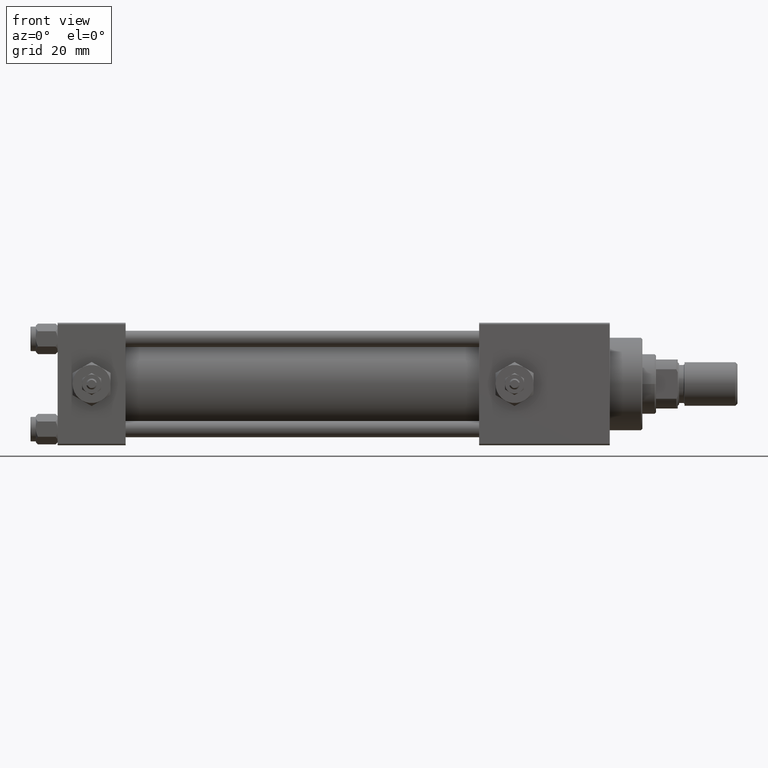
[diagram: clean part render]
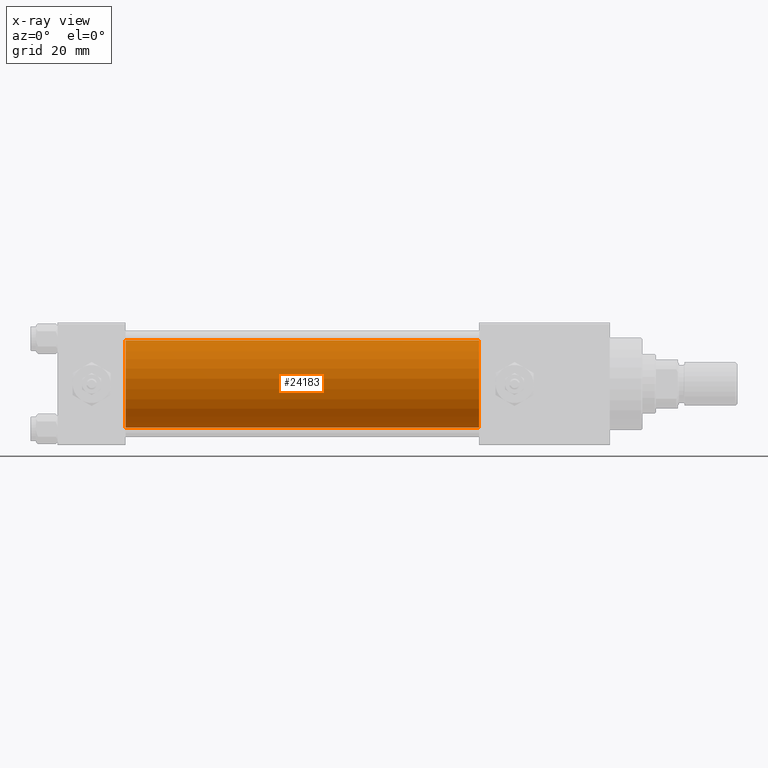
[diagram: x-ray — body ghosted, one internal face saturated and labeled with its STEP entity id]
A machine part, front view, then the same camera in x-ray: the body is ghosted and one INTERNAL B-rep face — a face not visible from any outside direction — is saturated and labeled: STEP entity #24183.
In plain terms, the highlighted cylindrical surface (partial cylindrical patch) has radius 16 mm, axis along (-1, -0, -0).
Its self-contained STEP definition (entity closure, byte-faithful):
#767 = ORIENTED_EDGE ( 'NONE', *, *, #30409, .T. ) ;
#1784 = CIRCLE ( 'NONE', #42606, 16.00000000000000000 ) ;
#4774 = CARTESIAN_POINT ( 'NONE',  ( 155.0000000000000000, -2.602085213965210642E-15, 0.000000000000000000 ) ) ;
#9052 = VERTEX_POINT ( 'NONE', #37432 ) ;
#10381 = VERTEX_POINT ( 'NONE', #37581 ) ;
#11103 = DIRECTION ( 'NONE',  ( -1.000000000000000000, -0.000000000000000000, -0.000000000000000000 ) ) ;
#11489 = DIRECTION ( 'NONE',  ( 0.000000000000000000, 0.000000000000000000, -1.000000000000000000 ) ) ;
#14057 = CARTESIAN_POINT ( 'NONE',  ( 25.00000000000000000, -2.602085213965210642E-15, 16.00000000000000000 ) ) ;
#14066 = CARTESIAN_POINT ( 'NONE',  ( 25.00000000000000000, -6.426503353294456087E-16, -16.00000000000000000 ) ) ;
#15596 = VERTEX_POINT ( 'NONE', #14057 ) ;
#15912 = ORIENTED_EDGE ( 'NONE', *, *, #18968, .T. ) ;
#16118 = CARTESIAN_POINT ( 'NONE',  ( 25.00000000000000000, -2.602085213965210642E-15, 0.000000000000000000 ) ) ;
#16327 = CIRCLE ( 'NONE', #23970, 16.00000000000000000 ) ;
#18968 = EDGE_CURVE ( 'NONE', #9052, #10381, #1784, .T. ) ;
#19619 = CARTESIAN_POINT ( 'NONE',  ( 155.0000000000000000, -6.426503353294456087E-16, -16.00000000000000000 ) ) ;
#23207 = DIRECTION ( 'NONE',  ( 1.000000000000000000, 0.000000000000000000, 0.000000000000000000 ) ) ;
#23970 = AXIS2_PLACEMENT_3D ( 'NONE', #16118, #24365, #48583 ) ;
#24183 = ADVANCED_FACE ( 'NONE', ( #33767 ), #41247, .F. ) ;
#24189 = VERTEX_POINT ( 'NONE', #14066 ) ;
#24365 = DIRECTION ( 'NONE',  ( 1.000000000000000000, 0.000000000000000000, 0.000000000000000000 ) ) ;
#24801 = AXIS2_PLACEMENT_3D ( 'NONE', #4774, #29251, #26041 ) ;
#25548 = EDGE_CURVE ( 'NONE', #15596, #24189, #16327, .T. ) ;
#26041 = DIRECTION ( 'NONE',  ( 0.000000000000000000, 0.000000000000000000, 1.000000000000000000 ) ) ;
#28515 = LINE ( 'NONE', #29046, #33615 ) ;
#29046 = CARTESIAN_POINT ( 'NONE',  ( 155.0000000000000000, -2.602085213965210642E-15, 16.00000000000000000 ) ) ;
#29251 = DIRECTION ( 'NONE',  ( -1.000000000000000000, -0.000000000000000000, -0.000000000000000000 ) ) ;
#30409 = EDGE_CURVE ( 'NONE', #10381, #24189, #44092, .T. ) ;
#31370 = ORIENTED_EDGE ( 'NONE', *, *, #25548, .F. ) ;
#32931 = ORIENTED_EDGE ( 'NONE', *, *, #40969, .F. ) ;
#33615 = VECTOR ( 'NONE', #44747, 1000.000000000000000 ) ;
#33767 = FACE_OUTER_BOUND ( 'NONE', #51326, .T. ) ;
#34925 = CARTESIAN_POINT ( 'NONE',  ( 155.0000000000000000, -2.602085213965210642E-15, 0.000000000000000000 ) ) ;
#37432 = CARTESIAN_POINT ( 'NONE',  ( 155.0000000000000000, -2.602085213965210642E-15, 16.00000000000000000 ) ) ;
#37581 = CARTESIAN_POINT ( 'NONE',  ( 155.0000000000000000, -6.426503353294456087E-16, -16.00000000000000000 ) ) ;
#40969 = EDGE_CURVE ( 'NONE', #9052, #15596, #28515, .T. ) ;
#41247 = CYLINDRICAL_SURFACE ( 'NONE', #24801, 16.00000000000000000 ) ;
#42606 = AXIS2_PLACEMENT_3D ( 'NONE', #34925, #23207, #11489 ) ;
#44092 = LINE ( 'NONE', #19619, #47814 ) ;
#44747 = DIRECTION ( 'NONE',  ( -1.000000000000000000, -0.000000000000000000, -0.000000000000000000 ) ) ;
#47814 = VECTOR ( 'NONE', #11103, 1000.000000000000000 ) ;
#48583 = DIRECTION ( 'NONE',  ( 0.000000000000000000, 0.000000000000000000, -1.000000000000000000 ) ) ;
#51326 = EDGE_LOOP ( 'NONE', ( #15912, #767, #31370, #32931 ) ) ;